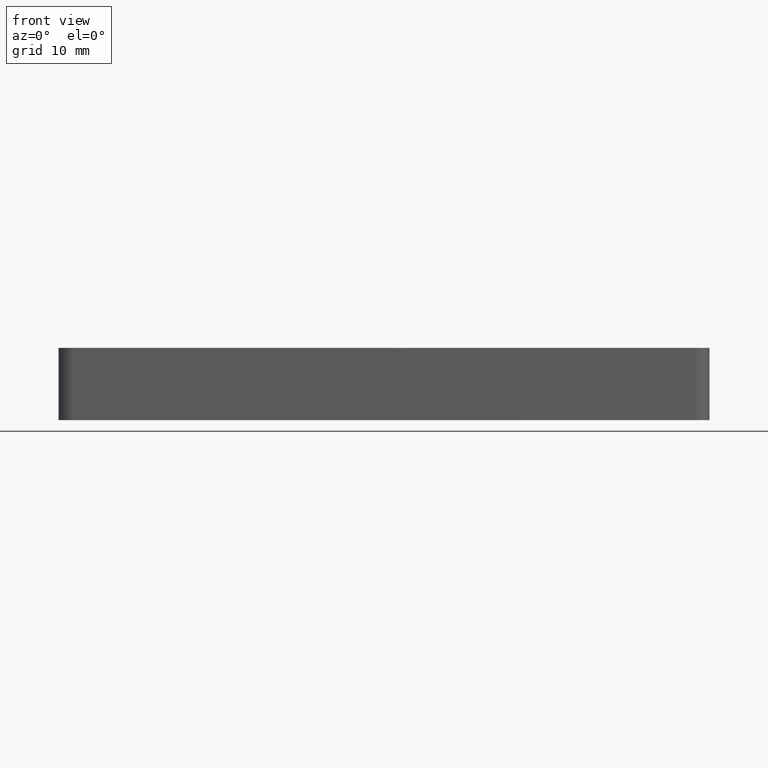
[diagram: clean part render]
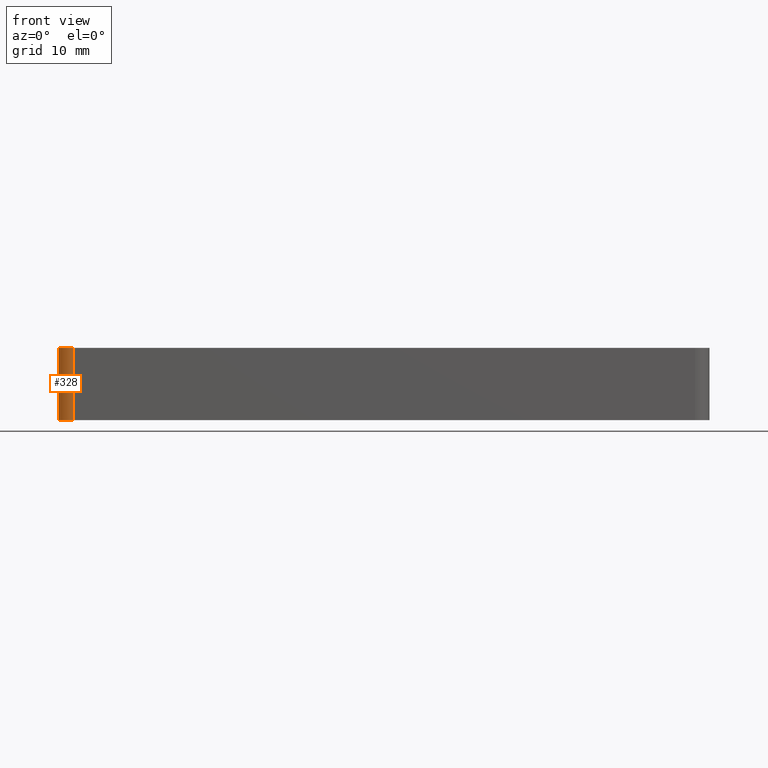
[diagram: same view with one face highlighted and labeled with its STEP entity id]
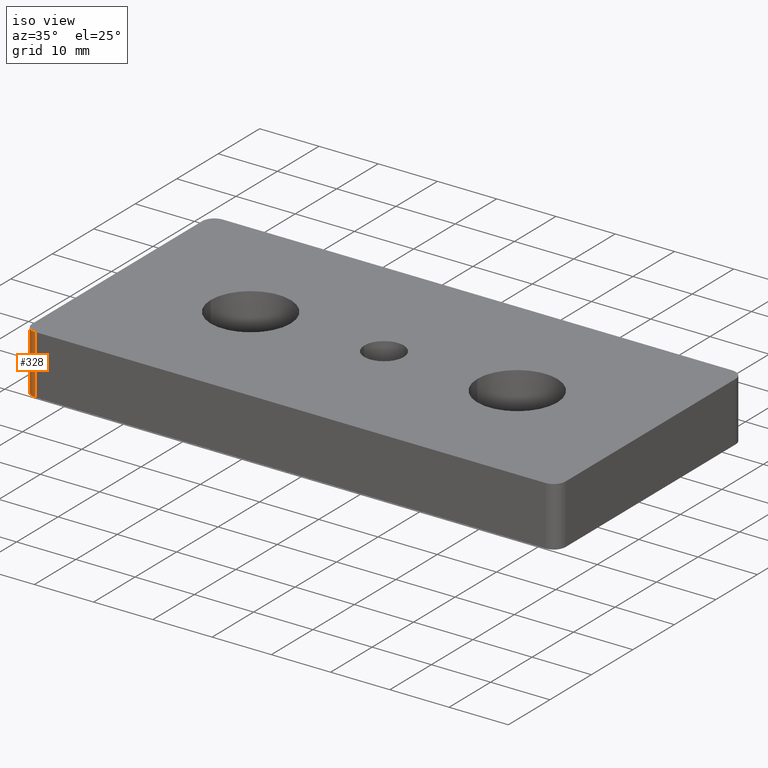
[diagram: same view with one face highlighted and labeled with its STEP entity id]
A machine part, front view. The second image highlights one B-rep face of the part: STEP entity #328.
A second angle (iso view) of the same face is appended — the face is thin or edge-on in the first view.
In plain terms, the highlighted cylindrical surface (edge-blend (fillet) strip) has radius 2 mm, axis along (0, 0, 1).
Its self-contained STEP definition (entity closure, byte-faithful):
#39=FACE_OUTER_BOUND('',#58,.T.);
#58=EDGE_LOOP('',(#253,#254,#255,#256));
#79=LINE('',#559,#100);
#80=LINE('',#562,#101);
#100=VECTOR('',#459,10.);
#101=VECTOR('',#462,10.);
#133=CIRCLE('',#383,2.);
#134=CIRCLE('',#384,2.);
#158=VERTEX_POINT('',#555);
#159=VERTEX_POINT('',#556);
#160=VERTEX_POINT('',#558);
#161=VERTEX_POINT('',#560);
#196=EDGE_CURVE('',#158,#159,#133,.T.);
#197=EDGE_CURVE('',#159,#160,#79,.T.);
#198=EDGE_CURVE('',#160,#161,#134,.T.);
#199=EDGE_CURVE('',#161,#158,#80,.T.);
#253=ORIENTED_EDGE('',*,*,#196,.T.);
#254=ORIENTED_EDGE('',*,*,#197,.T.);
#255=ORIENTED_EDGE('',*,*,#198,.T.);
#256=ORIENTED_EDGE('',*,*,#199,.T.);
#317=CYLINDRICAL_SURFACE('',#382,2.);
#328=ADVANCED_FACE('',(#39),#317,.T.);
#382=AXIS2_PLACEMENT_3D('',#554,#455,#456);
#383=AXIS2_PLACEMENT_3D('',#557,#457,#458);
#384=AXIS2_PLACEMENT_3D('',#561,#460,#461);
#455=DIRECTION('center_axis',(0.,0.,1.));
#456=DIRECTION('ref_axis',(-0.707106781186546,-0.707106781186549,0.));
#457=DIRECTION('center_axis',(0.,0.,-1.));
#458=DIRECTION('ref_axis',(-0.707106781186546,-0.707106781186549,0.));
#459=DIRECTION('',(0.,0.,-1.));
#460=DIRECTION('center_axis',(0.,0.,1.));
#461=DIRECTION('ref_axis',(-0.707106781186546,-0.707106781186549,0.));
#462=DIRECTION('',(0.,0.,1.));
#554=CARTESIAN_POINT('Origin',(-43.,-20.5,0.));
#555=CARTESIAN_POINT('',(-43.,-22.5,10.));
#556=CARTESIAN_POINT('',(-45.,-20.5,10.));
#557=CARTESIAN_POINT('Origin',(-43.,-20.5,10.));
#558=CARTESIAN_POINT('',(-45.,-20.5,0.));
#559=CARTESIAN_POINT('',(-45.,-20.5,0.));
#560=CARTESIAN_POINT('',(-43.,-22.5,0.));
#561=CARTESIAN_POINT('Origin',(-43.,-20.5,0.));
#562=CARTESIAN_POINT('',(-43.,-22.5,0.));